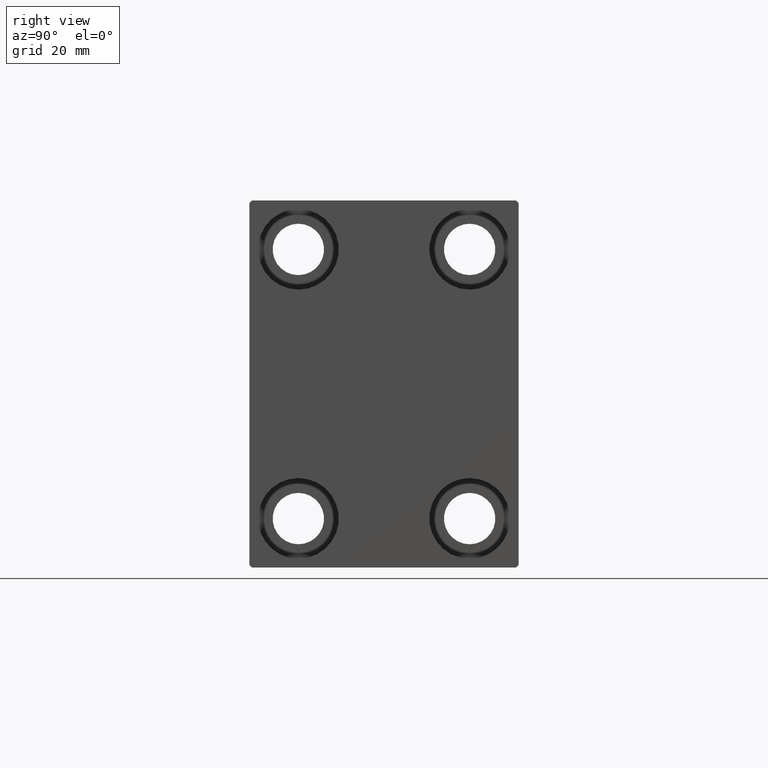
[diagram: clean part render]
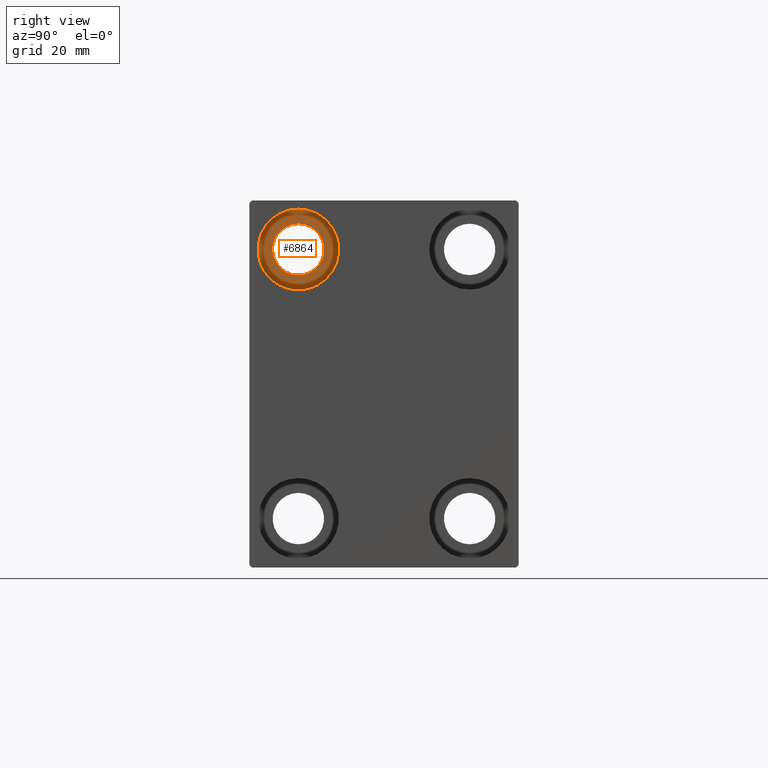
[diagram: same view with one face highlighted and labeled with its STEP entity id]
A machine part, right view. The second image highlights one B-rep face of the part: STEP entity #6864.
In plain terms, the highlighted planar face has unit normal (1, 0, 0).
Its self-contained STEP definition (entity closure, byte-faithful):
#1121 = EDGE_CURVE ( 'NONE', #38523, #42881, #9502, .T. ) ;
#2247 = AXIS2_PLACEMENT_3D ( 'NONE', #16520, #7160, #2731 ) ;
#2731 = DIRECTION ( 'NONE',  ( 0.000000000000000000, 0.000000000000000000, -1.000000000000000000 ) ) ;
#3803 = DIRECTION ( 'NONE',  ( -1.000000000000000000, -0.000000000000000000, -0.000000000000000000 ) ) ;
#4792 = ORIENTED_EDGE ( 'NONE', *, *, #1121, .F. ) ;
#6864 = ADVANCED_FACE ( 'NONE', ( #41242, #10336 ), #34134, .T. ) ;
#7160 = DIRECTION ( 'NONE',  ( -1.000000000000000000, -0.000000000000000000, -0.000000000000000000 ) ) ;
#7485 = VERTEX_POINT ( 'NONE', #31552 ) ;
#9502 = CIRCLE ( 'NONE', #15175, 8.249999999999992895 ) ;
#10336 = FACE_BOUND ( 'NONE', #29555, .T. ) ;
#11222 = DIRECTION ( 'NONE',  ( 0.000000000000000000, 0.000000000000000000, 1.000000000000000000 ) ) ;
#12341 = AXIS2_PLACEMENT_3D ( 'NONE', #37218, #16092, #12528 ) ;
#12448 = ORIENTED_EDGE ( 'NONE', *, *, #36316, .T. ) ;
#12528 = DIRECTION ( 'NONE',  ( 0.000000000000000000, 0.000000000000000000, -1.000000000000000000 ) ) ;
#14686 = DIRECTION ( 'NONE',  ( 0.000000000000000000, 0.000000000000000000, 1.000000000000000000 ) ) ;
#15175 = AXIS2_PLACEMENT_3D ( 'NONE', #32111, #18125, #11222 ) ;
#16092 = DIRECTION ( 'NONE',  ( -1.000000000000000000, -0.000000000000000000, -0.000000000000000000 ) ) ;
#16520 = CARTESIAN_POINT ( 'NONE',  ( 94.00000000000000000, -17.49999999999999645, 27.49999999999999645 ) ) ;
#16799 = AXIS2_PLACEMENT_3D ( 'NONE', #43926, #19898, #37263 ) ;
#17102 = CARTESIAN_POINT ( 'NONE',  ( 94.00000000000000000, -17.49999999999999645, 35.74999999999999289 ) ) ;
#18125 = DIRECTION ( 'NONE',  ( -1.000000000000000000, -0.000000000000000000, -0.000000000000000000 ) ) ;
#19898 = DIRECTION ( 'NONE',  ( 1.000000000000000000, 0.000000000000000000, -0.000000000000000000 ) ) ;
#21009 = CARTESIAN_POINT ( 'NONE',  ( 94.00000000000000000, -17.49999999999999645, 19.25000000000000000 ) ) ;
#21615 = EDGE_CURVE ( 'NONE', #42881, #38523, #34770, .T. ) ;
#23124 = EDGE_LOOP ( 'NONE', ( #31138, #4792 ) ) ;
#24834 = AXIS2_PLACEMENT_3D ( 'NONE', #41386, #3803, #14686 ) ;
#29555 = EDGE_LOOP ( 'NONE', ( #12448, #35284 ) ) ;
#30239 = EDGE_CURVE ( 'NONE', #7485, #30755, #40626, .T. ) ;
#30351 = CARTESIAN_POINT ( 'NONE',  ( 94.00000000000000000, -17.49999999999999645, 32.74999999999999289 ) ) ;
#30755 = VERTEX_POINT ( 'NONE', #30351 ) ;
#31138 = ORIENTED_EDGE ( 'NONE', *, *, #21615, .F. ) ;
#31552 = CARTESIAN_POINT ( 'NONE',  ( 94.00000000000000000, -17.49999999999999645, 22.25000000000000000 ) ) ;
#32111 = CARTESIAN_POINT ( 'NONE',  ( 94.00000000000000000, -17.49999999999999645, 27.49999999999999645 ) ) ;
#34134 = PLANE ( 'NONE',  #16799 ) ;
#34770 = CIRCLE ( 'NONE', #24834, 8.249999999999992895 ) ;
#35284 = ORIENTED_EDGE ( 'NONE', *, *, #30239, .T. ) ;
#36316 = EDGE_CURVE ( 'NONE', #30755, #7485, #37911, .T. ) ;
#37218 = CARTESIAN_POINT ( 'NONE',  ( 94.00000000000000000, -17.49999999999999645, 27.49999999999999645 ) ) ;
#37263 = DIRECTION ( 'NONE',  ( 0.000000000000000000, 0.000000000000000000, 1.000000000000000000 ) ) ;
#37911 = CIRCLE ( 'NONE', #12341, 5.249999999999997335 ) ;
#38523 = VERTEX_POINT ( 'NONE', #17102 ) ;
#40626 = CIRCLE ( 'NONE', #2247, 5.249999999999997335 ) ;
#41242 = FACE_OUTER_BOUND ( 'NONE', #23124, .T. ) ;
#41386 = CARTESIAN_POINT ( 'NONE',  ( 94.00000000000000000, -17.49999999999999645, 27.49999999999999645 ) ) ;
#42881 = VERTEX_POINT ( 'NONE', #21009 ) ;
#43926 = CARTESIAN_POINT ( 'NONE',  ( 94.00000000000000000, 0.000000000000000000, 0.000000000000000000 ) ) ;